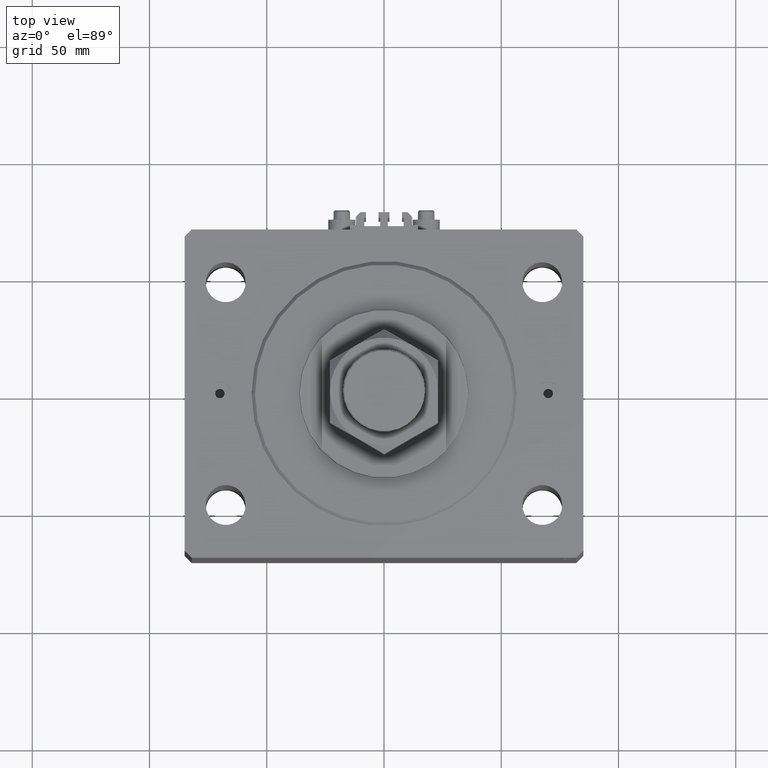
[diagram: clean part render]
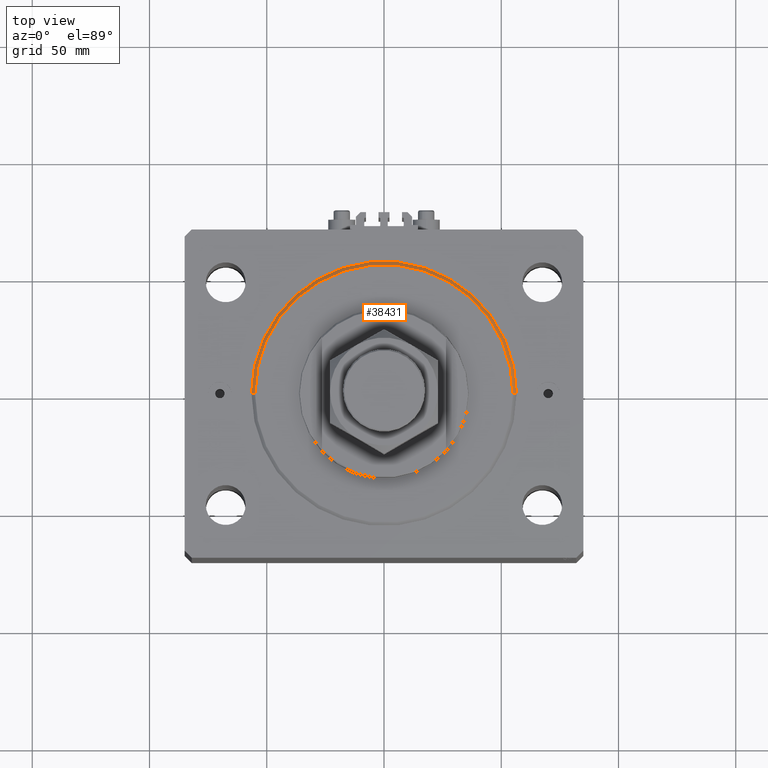
[diagram: same view with one face highlighted and labeled with its STEP entity id]
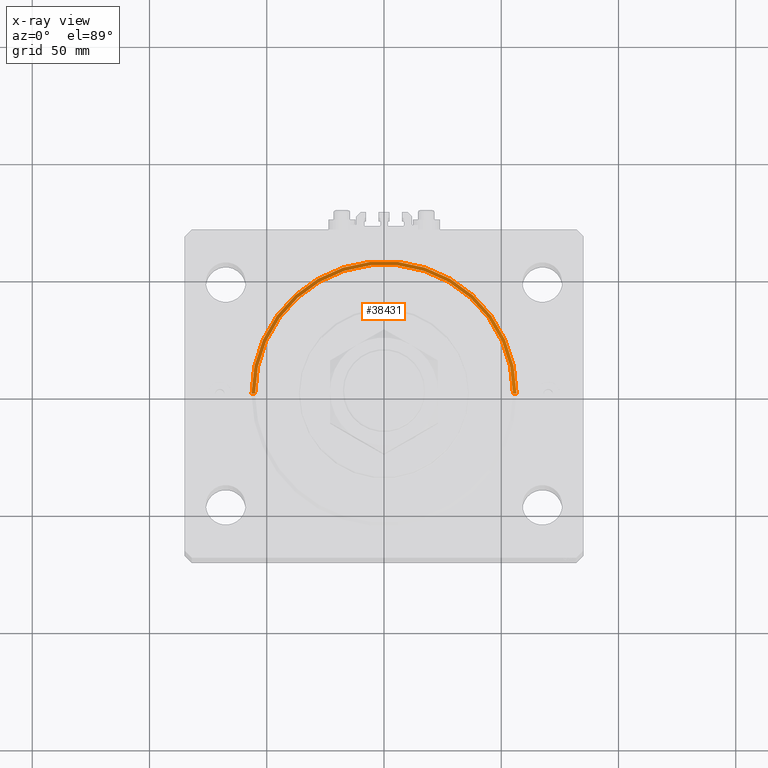
[diagram: x-ray of the same camera — body ghosted, the highlighted face saturated]
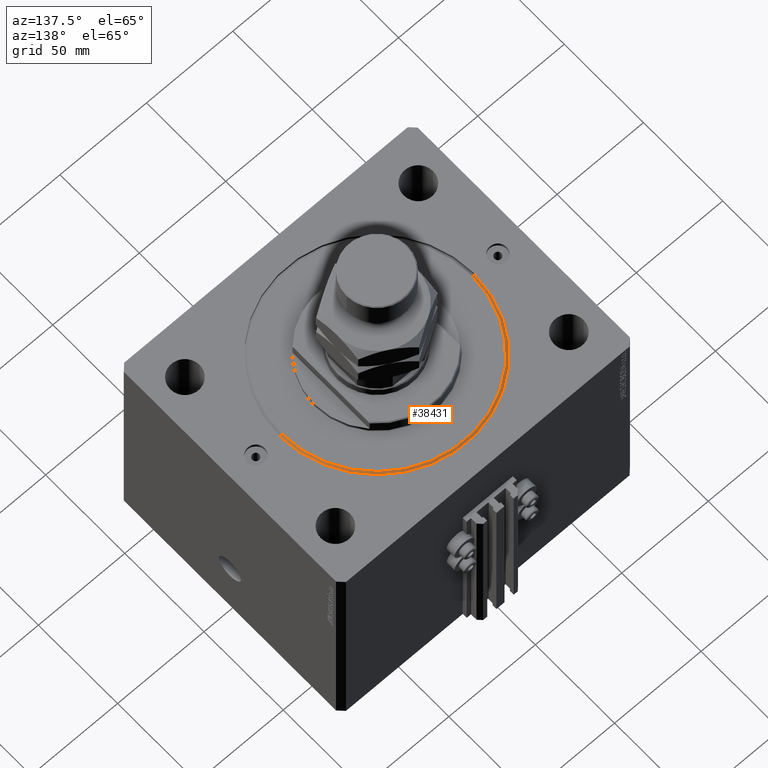
[diagram: same view with one face highlighted and labeled with its STEP entity id]
A machine part, top view. The second image highlights one B-rep face of the part: STEP entity #38431.
The next image is the same camera in x-ray: the body ghosted, the highlighted face saturated — about 0% of this face is hidden behind the body in this view.
A second angle (auxiliary view) of the same face is appended — the face is thin or edge-on in the first view.
In plain terms, the highlighted conical surface has half-angle 45 deg.
Its self-contained STEP definition (entity closure, byte-faithful):
#1198 = LINE ( 'NONE', #35140, #13126 ) ;
#3789 = VERTEX_POINT ( 'NONE', #5773 ) ;
#4250 = AXIS2_PLACEMENT_3D ( 'NONE', #18455, #6564, #14015 ) ;
#4939 = DIRECTION ( 'NONE',  ( 1.000000000000000000, 0.000000000000000000, 0.000000000000000000 ) ) ;
#5562 = CARTESIAN_POINT ( 'NONE',  ( 56.50000000000000711, 6.919254415182546126E-15, 1.499999999999987566 ) ) ;
#5773 = CARTESIAN_POINT ( 'NONE',  ( -55.00000000000002132, 6.827405905246494765E-15, 0.000000000000000000 ) ) ;
#6564 = DIRECTION ( 'NONE',  ( -0.000000000000000000, -0.000000000000000000, 1.000000000000000000 ) ) ;
#6741 = LINE ( 'NONE', #37929, #20068 ) ;
#13126 = VECTOR ( 'NONE', #19807, 1000.000000000000000 ) ;
#14015 = DIRECTION ( 'NONE',  ( 1.000000000000000000, 0.000000000000000000, 0.000000000000000000 ) ) ;
#15154 = VERTEX_POINT ( 'NONE', #43625 ) ;
#16338 = DIRECTION ( 'NONE',  ( -0.000000000000000000, -0.000000000000000000, -1.000000000000000000 ) ) ;
#16585 = CARTESIAN_POINT ( 'NONE',  ( 0.000000000000000000, 0.000000000000000000, 0.000000000000000000 ) ) ;
#18455 = CARTESIAN_POINT ( 'NONE',  ( 0.000000000000000000, 0.000000000000000000, 1.499999999999987566 ) ) ;
#18896 = EDGE_CURVE ( 'NONE', #15154, #31164, #1198, .T. ) ;
#19807 = DIRECTION ( 'NONE',  ( 0.7071067811865475727, 0.000000000000000000, 0.7071067811865474617 ) ) ;
#20068 = VECTOR ( 'NONE', #22592, 1000.000000000000000 ) ;
#22592 = DIRECTION ( 'NONE',  ( -0.7071067811865475727, 8.659560562354931626E-17, 0.7071067811865474617 ) ) ;
#24010 = EDGE_LOOP ( 'NONE', ( #36410, #28330, #47129, #27019 ) ) ;
#24920 = FACE_OUTER_BOUND ( 'NONE', #24010, .T. ) ;
#25602 = CONICAL_SURFACE ( 'NONE', #4250, 56.50000000000000711, 0.7853981633974482790 ) ;
#26770 = CARTESIAN_POINT ( 'NONE',  ( 0.000000000000000000, 0.000000000000000000, 1.499999999999987566 ) ) ;
#27019 = ORIENTED_EDGE ( 'NONE', *, *, #18896, .F. ) ;
#28330 = ORIENTED_EDGE ( 'NONE', *, *, #32980, .T. ) ;
#29333 = CARTESIAN_POINT ( 'NONE',  ( -56.50000000000000711, 0.000000000000000000, 1.499999999999987566 ) ) ;
#31143 = AXIS2_PLACEMENT_3D ( 'NONE', #16585, #16338, #4939 ) ;
#31164 = VERTEX_POINT ( 'NONE', #5562 ) ;
#32980 = EDGE_CURVE ( 'NONE', #3789, #48511, #6741, .T. ) ;
#34298 = CIRCLE ( 'NONE', #31143, 55.00000000000002132 ) ;
#35140 = CARTESIAN_POINT ( 'NONE',  ( 56.50000000000000711, 0.000000000000000000, 1.499999999999987566 ) ) ;
#36410 = ORIENTED_EDGE ( 'NONE', *, *, #37633, .F. ) ;
#37412 = DIRECTION ( 'NONE',  ( 1.000000000000000000, 0.000000000000000000, 0.000000000000000000 ) ) ;
#37633 = EDGE_CURVE ( 'NONE', #3789, #15154, #34298, .T. ) ;
#37929 = CARTESIAN_POINT ( 'NONE',  ( -56.50000000000000711, 6.919254415182544548E-15, 1.499999999999987566 ) ) ;
#38362 = EDGE_CURVE ( 'NONE', #31164, #48511, #39835, .T. ) ;
#38431 = ADVANCED_FACE ( 'NONE', ( #24920 ), #25602, .T. ) ;
#39835 = CIRCLE ( 'NONE', #40621, 56.50000000000000711 ) ;
#40621 = AXIS2_PLACEMENT_3D ( 'NONE', #26770, #44844, #37412 ) ;
#43625 = CARTESIAN_POINT ( 'NONE',  ( 55.00000000000002132, 0.000000000000000000, 0.000000000000000000 ) ) ;
#44844 = DIRECTION ( 'NONE',  ( -0.000000000000000000, -0.000000000000000000, 1.000000000000000000 ) ) ;
#47129 = ORIENTED_EDGE ( 'NONE', *, *, #38362, .F. ) ;
#48511 = VERTEX_POINT ( 'NONE', #29333 ) ;